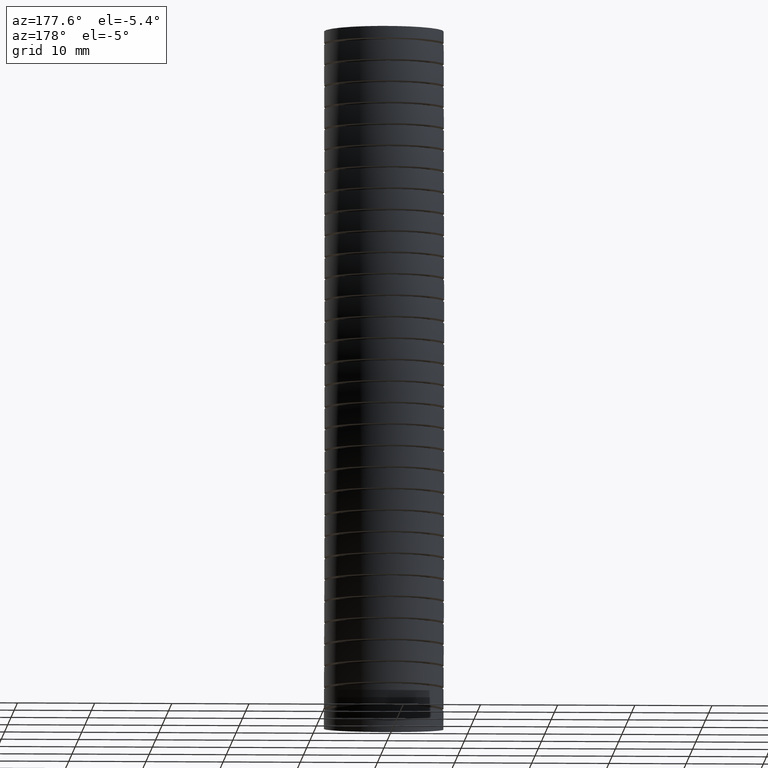
[diagram: clean part render]
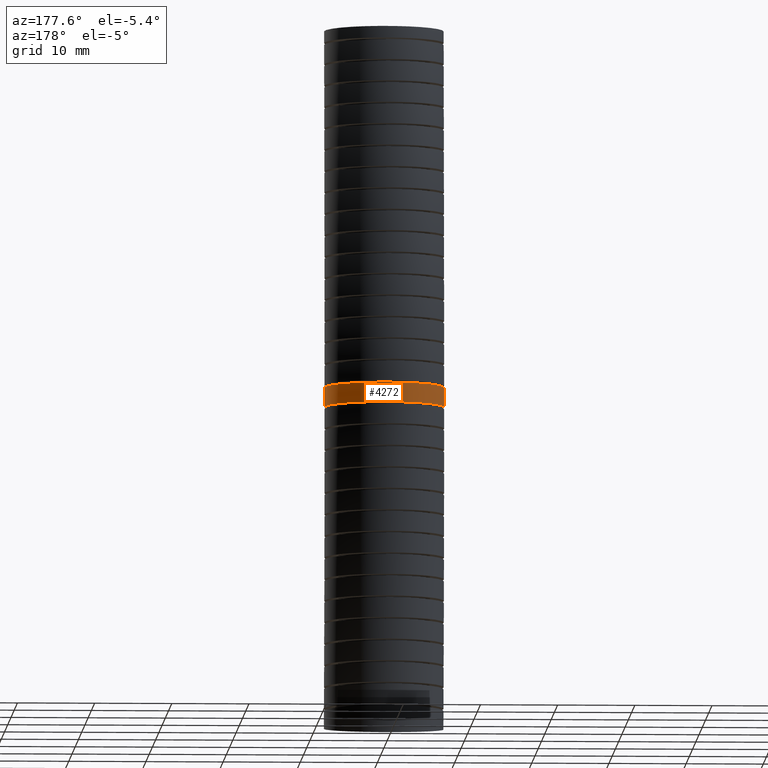
[diagram: same view with one face highlighted and labeled with its STEP entity id]
A machine part, auxiliary view. The second image highlights one B-rep face of the part: STEP entity #4272.
In plain terms, the highlighted face is a freeform B-spline surface patch.
Its self-contained STEP definition (entity closure, byte-faithful):
#700 = FACE_OUTER_BOUND ( 'NONE', #4273, .T. ) ;
#720 = CARTESIAN_POINT ( 'NONE',  ( -0.3049999999999999400, 0.6875905811525234700, -1.687708987936889400 ) ) ;
#721 = CARTESIAN_POINT ( 'NONE',  ( -0.3049999999999999400, 0.6410401296320996600, -0.6751683643642422100 ) ) ;
#722 = CARTESIAN_POINT ( 'NONE',  ( -0.3049999999999999400, 0.6100000000000001000, 0.0000000000000000000 ) ) ;
#723 = CARTESIAN_POINT ( 'NONE',  ( -0.3049999999999999900, -0.02999999999999996100, -3.569999999999999400 ) ) ;
#724 = CARTESIAN_POINT ( 'NONE',  ( -0.3049999999999999400, -0.01189670328115248300, -3.380058092153300100 ) ) ;
#725 = CARTESIAN_POINT ( 'NONE',  ( -0.3049999999999999900, 0.03783273064349428100, -2.858291051460112500 ) ) ;
#726 = CARTESIAN_POINT ( 'NONE',  ( -0.3049999999999999900, 0.07694042471324441500, -1.669468061939300500 ) ) ;
#727 = CARTESIAN_POINT ( 'NONE',  ( -0.3050000000000000500, 0.03078003440073754200, -0.6678710777714059700 ) ) ;
#728 = CARTESIAN_POINT ( 'NONE',  ( -0.3050000000000000500, 3.735172737399427600E-017, 0.0000000000000000000 ) ) ;
#729 = CARTESIAN_POINT ( 'NONE',  ( -0.3050000000000000500, -0.6339397472009050700, -3.484228316147418800 ) ) ;
#730 = CARTESIAN_POINT ( 'NONE',  ( -0.3050000000000000500, -0.6165911457587421900, -3.301565899820480900 ) ) ;
#731 = CARTESIAN_POINT ( 'NONE',  ( -0.3050000000000000500, -0.5689348463287677800, -2.799795492787948300 ) ) ;
#732 = CARTESIAN_POINT ( 'NONE',  ( -0.3050000000000001000, -0.5337097317260344200, -1.651227135941712300 ) ) ;
#733 = CARTESIAN_POINT ( 'NONE',  ( -0.3050000000000001600, -0.5794800608306244200, -0.6605737911785694000 ) ) ;
#734 = CARTESIAN_POINT ( 'NONE',  ( -0.3050000000000001000, -0.6100000000000001000, 0.0000000000000000000 ) ) ;
#735 = CARTESIAN_POINT ( 'NONE',  ( 0.3049999999999999400, -0.6339397472009050700, -3.484228316147418800 ) ) ;
#736 = CARTESIAN_POINT ( 'NONE',  ( 0.3049999999999999400, -0.6165911457587421900, -3.301565899820480900 ) ) ;
#737 = CARTESIAN_POINT ( 'NONE',  ( 0.3049999999999999400, -0.5689348463287677800, -2.799795492787948300 ) ) ;
#738 = CARTESIAN_POINT ( 'NONE',  ( 0.3050000000000000500, -0.5337097317260344200, -1.651227135941712300 ) ) ;
#739 = CARTESIAN_POINT ( 'NONE',  ( 0.3050000000000000500, -0.5794800608306244200, -0.6605737911785694000 ) ) ;
#740 = CARTESIAN_POINT ( 'NONE',  ( 0.3050000000000000500, -0.6100000000000001000, 0.0000000000000000000 ) ) ;
#741 = CARTESIAN_POINT ( 'NONE',  ( 0.3049999999999999900, -0.02999999999999999900, -3.569999999999999400 ) ) ;
#742 = CARTESIAN_POINT ( 'NONE',  ( 0.3049999999999999400, -0.01189670328115252300, -3.380058092153300100 ) ) ;
#743 = CARTESIAN_POINT ( 'NONE',  ( 0.3049999999999999900, 0.03783273064349424600, -2.858291051460112500 ) ) ;
#744 = CARTESIAN_POINT ( 'NONE',  ( 0.3049999999999999900, 0.07694042471324438700, -1.669468061939300500 ) ) ;
#745 = CARTESIAN_POINT ( 'NONE',  ( 0.3050000000000000500, 0.03078003440073750300, -0.6678710777714059700 ) ) ;
#746 = CARTESIAN_POINT ( 'NONE',  ( 0.3050000000000000500, 0.0000000000000000000, 0.0000000000000000000 ) ) ;
#755 =( BOUNDED_SURFACE ( )  B_SPLINE_SURFACE ( 3, 3, ( 
 ( #746, #745, #744, #743, #742, #741 ),
 ( #740, #739, #738, #737, #736, #735 ),
 ( #734, #733, #732, #731, #730, #729 ),
 ( #728, #727, #726, #725, #724, #723 ),
 ( #722, #721, #720, #777, #776, #775 ),
 ( #774, #773, #772, #771, #770, #769 ),
 ( #768, #767, #766, #765, #764, #763 ) ),
 .UNSPECIFIED., .F., .F., .F. ) 
 B_SPLINE_SURFACE_WITH_KNOTS ( ( 4, 3, 4 ),
 ( 4, 1, 1, 4 ),
 ( 0.0000000000000000000, 0.5000000000000000000, 1.000000000000000000 ),
 ( 0.0000000000000000000, 0.5599999999999999400, 0.8398242262648183400, 1.000000000000000000 ),
 .UNSPECIFIED. ) 
 GEOMETRIC_REPRESENTATION_ITEM ( )  RATIONAL_B_SPLINE_SURFACE ( (
 ( 1.000000000000000000, 1.000000000000000000, 1.000000000000000200, 1.000000000000000000, 1.000000000000000000, 1.000000000000000000),
 ( 0.3333333333333333100, 0.3333333333333333100, 0.3333333333333333100, 0.3333333333333333100, 0.3333333333333333100, 0.3333333333333333100),
 ( 0.3333333333333333100, 0.3333333333333333100, 0.3333333333333333100, 0.3333333333333333100, 0.3333333333333333100, 0.3333333333333333100),
 ( 1.000000000000000000, 1.000000000000000000, 1.000000000000000200, 1.000000000000000000, 1.000000000000000000, 1.000000000000000000),
 ( 0.3333333333333333100, 0.3333333333333333100, 0.3333333333333333100, 0.3333333333333333100, 0.3333333333333333100, 0.3333333333333333100),
 ( 0.3333333333333333100, 0.3333333333333333100, 0.3333333333333333100, 0.3333333333333333100, 0.3333333333333333100, 0.3333333333333333100),
 ( 1.000000000000000000, 1.000000000000000000, 1.000000000000000200, 1.000000000000000000, 1.000000000000000000, 1.000000000000000000) ) ) 
 REPRESENTATION_ITEM ( '' )  SURFACE ( )  );
#763 = CARTESIAN_POINT ( 'NONE',  ( 0.3049999999999999900, -0.02999999999999999900, -3.569999999999999400 ) ) ;
#764 = CARTESIAN_POINT ( 'NONE',  ( 0.3049999999999999400, -0.01189670328115252300, -3.380058092153300100 ) ) ;
#765 = CARTESIAN_POINT ( 'NONE',  ( 0.3049999999999999900, 0.03783273064349424600, -2.858291051460112500 ) ) ;
#766 = CARTESIAN_POINT ( 'NONE',  ( 0.3049999999999999900, 0.07694042471324438700, -1.669468061939300500 ) ) ;
#767 = CARTESIAN_POINT ( 'NONE',  ( 0.3050000000000000500, 0.03078003440073750300, -0.6678710777714059700 ) ) ;
#768 = CARTESIAN_POINT ( 'NONE',  ( 0.3050000000000000500, 0.0000000000000000000, 0.0000000000000000000 ) ) ;
#769 = CARTESIAN_POINT ( 'NONE',  ( 0.3049999999999999400, 0.5739397472009051300, -3.655771683852579600 ) ) ;
#770 = CARTESIAN_POINT ( 'NONE',  ( 0.3049999999999999400, 0.5927977391964371900, -3.458550284486119800 ) ) ;
#771 = CARTESIAN_POINT ( 'NONE',  ( 0.3049999999999999400, 0.6446003076157559300, -2.916786610132277200 ) ) ;
#772 = CARTESIAN_POINT ( 'NONE',  ( 0.3050000000000000500, 0.6875905811525232500, -1.687708987936889400 ) ) ;
#773 = CARTESIAN_POINT ( 'NONE',  ( 0.3050000000000000500, 0.6410401296320993300, -0.6751683643642422100 ) ) ;
#774 = CARTESIAN_POINT ( 'NONE',  ( 0.3050000000000000500, 0.6100000000000001000, 0.0000000000000000000 ) ) ;
#775 = CARTESIAN_POINT ( 'NONE',  ( -0.3049999999999998800, 0.5739397472009051300, -3.655771683852579600 ) ) ;
#776 = CARTESIAN_POINT ( 'NONE',  ( -0.3049999999999998800, 0.5927977391964373000, -3.458550284486119800 ) ) ;
#777 = CARTESIAN_POINT ( 'NONE',  ( -0.3049999999999999400, 0.6446003076157562600, -2.916786610132277200 ) ) ;
#868 = CARTESIAN_POINT ( 'NONE',  ( 0.3030210787423854900, 0.09764194309996519800, -1.829006689165779500 ) ) ;
#869 = CARTESIAN_POINT ( 'NONE',  ( 0.2951211052254523700, 0.1370836361751905900, -1.829006689165779700 ) ) ;
#870 = CARTESIAN_POINT ( 'NONE',  ( 0.2892683144005961400, 0.1561904237539593600, -1.829006689165780800 ) ) ;
#871 = CARTESIAN_POINT ( 'NONE',  ( 0.2778291994620708000, 0.1836869946431153000, -1.829006689165780400 ) ) ;
#872 = CARTESIAN_POINT ( 'NONE',  ( 0.2735663773831749100, 0.1926731644937737200, -1.829006689165782100 ) ) ;
#873 = CARTESIAN_POINT ( 'NONE',  ( 0.2641242958406954100, 0.2102800696893973000, -1.829006689165781700 ) ) ;
#874 = CARTESIAN_POINT ( 'NONE',  ( 0.2589136028122828700, 0.2189422409678590300, -1.829006689165779700 ) ) ;
#875 = CARTESIAN_POINT ( 'NONE',  ( 0.2421887135304763300, 0.2438667697056392500, -1.829006689165779000 ) ) ;
#876 = CARTESIAN_POINT ( 'NONE',  ( 0.2295555245778986300, 0.2591897671104898000, -1.829006689165779000 ) ) ;
#877 = CARTESIAN_POINT ( 'NONE',  ( 0.2013730925730443100, 0.2872930611300456000, -1.829006689165779500 ) ) ;
#878 = CARTESIAN_POINT ( 'NONE',  ( 0.1856586747766905700, 0.3001465312061705700, -1.829006689165780400 ) ) ;
#879 = CARTESIAN_POINT ( 'NONE',  ( 0.1525221154587592100, 0.3221996548980898800, -1.829006689165780600 ) ) ;
#880 = CARTESIAN_POINT ( 'NONE',  ( 0.1349994359866557000, 0.3315440237235637900, -1.829006689165781000 ) ) ;
#881 = CARTESIAN_POINT ( 'NONE',  ( 0.1072618138148168100, 0.3429985052530367100, -1.829006689165780600 ) ) ;
#882 = CARTESIAN_POINT ( 'NONE',  ( 0.09773891956018152000, 0.3463913856232272400, -1.829006689165780600 ) ) ;
#883 = CARTESIAN_POINT ( 'NONE',  ( 0.07860808361452638300, 0.3521633756517976700, -1.829006689165780600 ) ) ;
#884 = CARTESIAN_POINT ( 'NONE',  ( 0.06895514266880412000, 0.3545645772040374500, -1.829006689165780400 ) ) ;
#885 = CARTESIAN_POINT ( 'NONE',  ( 0.03973879276251687800, 0.3603417284934002400, -1.829006689165780600 ) ) ;
#886 = CARTESIAN_POINT ( 'NONE',  ( 0.01985264643487589700, 0.3623050163817725400, -1.829006689165781900 ) ) ;
#887 = CARTESIAN_POINT ( 'NONE',  ( -0.02035163137551255400, 0.3622721590213370800, -1.829006689165782100 ) ) ;
#888 = CARTESIAN_POINT ( 'NONE',  ( -0.04013923214573940400, 0.3602897767163270000, -1.829006689165780600 ) ) ;
#889 = CARTESIAN_POINT ( 'NONE',  ( -0.06936517418033220900, 0.3544694530246133000, -1.829006689165780600 ) ) ;
#890 = CARTESIAN_POINT ( 'NONE',  ( -0.07903068960649008200, 0.3520514153544564400, -1.829006689165780100 ) ) ;
#891 = CARTESIAN_POINT ( 'NONE',  ( -0.09820480002580900300, 0.3462345422673602800, -1.829006689165780600 ) ) ;
#892 = CARTESIAN_POINT ( 'NONE',  ( -0.1077106077162899700, 0.3428289065309596000, -1.829006689165781000 ) ) ;
#893 = CARTESIAN_POINT ( 'NONE',  ( -0.1353634456136917100, 0.3313611324674438100, -1.829006689165780800 ) ) ;
#894 = CARTESIAN_POINT ( 'NONE',  ( -0.1528713213671046600, 0.3220011948961019100, -1.829006689165779200 ) ) ;
#895 = CARTESIAN_POINT ( 'NONE',  ( -0.1777454867884881400, 0.3053953988895289900, -1.829006689165779700 ) ) ;
#896 = CARTESIAN_POINT ( 'NONE',  ( -0.1858431384248729300, 0.2993962364895630900, -1.829006689165780600 ) ) ;
#897 = CARTESIAN_POINT ( 'NONE',  ( -0.2013535231200848400, 0.2866670345353685700, -1.829006689165780600 ) ) ;
#898 = CARTESIAN_POINT ( 'NONE',  ( -0.2087394441970197000, 0.2799666244301943200, -1.829006689165781500 ) ) ;
#899 = CARTESIAN_POINT ( 'NONE',  ( -0.2298202668927727700, 0.2588860423730404700, -1.829006689165782100 ) ) ;
#900 = CARTESIAN_POINT ( 'NONE',  ( -0.2424485601805788100, 0.2435359146132727300, -1.829006689165781900 ) ) ;
#901 = CARTESIAN_POINT ( 'NONE',  ( -0.2591866426374074300, 0.2185061170906231500, -1.829006689165781900 ) ) ;
#902 = CARTESIAN_POINT ( 'NONE',  ( -0.2643619980479604600, 0.2098674739454489100, -1.829006689165780800 ) ) ;
#903 = CARTESIAN_POINT ( 'NONE',  ( -0.2737563463470617500, 0.1922868442455445700, -1.829006689165780600 ) ) ;
#904 = CARTESIAN_POINT ( 'NONE',  ( -0.2822485028551859900, 0.1743238951653098800, -1.829006689165782100 ) ) ;
#905 = CARTESIAN_POINT ( 'NONE',  ( -0.2889575095469617500, 0.1556053054999573800, -1.829006689165781000 ) ) ;
#906 = CARTESIAN_POINT ( 'NONE',  ( -0.2947597196333074400, 0.1365024450844817800, -1.829006689165780600 ) ) ;
#907 = CARTESIAN_POINT ( 'NONE',  ( -0.2972163288652339700, 0.1267032054523716300, -1.829006689165780800 ) ) ;
#908 = CARTESIAN_POINT ( 'NONE',  ( -0.3030688998954290100, 0.09723661801786878700, -1.829006689165780800 ) ) ;
#909 = CARTESIAN_POINT ( 'NONE',  ( -0.3050000000000001000, 0.07746693778235563800, -1.829006689165781900 ) ) ;
#910 = CARTESIAN_POINT ( 'NONE',  ( -0.3050000000000000500, 0.05757448116187372600, -1.829006689165781900 ) ) ;
#912 = B_SPLINE_CURVE_WITH_KNOTS ( 'NONE', 3,
 ( #910, #909, #908, #907, #906, #905, #904, #903, #902, #901, #900, #899, #898, #897, #896, #895, #894, #893, #892, #891, #890, #889, #888, #887, #886, #885, #884, #883, #882, #881, #880, #879, #878, #877, #876, #875, #874, #873, #872, #871, #870, #869, #868, #6221, #6220 ),
 .UNSPECIFIED., .F., .F.,
 ( 4, 2, 2, 1, 2, 2, 2, 2, 2, 2, 2, 2, 2, 2, 2, 2, 2, 2, 2, 2, 2, 2, 4 ),
 ( 0.02420901817277669800, 0.02572176972454263600, 0.02647814550042560500, 0.02723452127630857400, 0.02799089705219154300, 0.02874727282807451300, 0.03026002437984044700, 0.03101640015572341600, 0.03177277593160638500, 0.03328552748337232400, 0.03404190325925528900, 0.03479827903513826200, 0.03631103058690420000, 0.03782378213867013100, 0.03858015791455310400, 0.03933653369043607600, 0.04084928524220200800, 0.04236203679396795300, 0.04387478834573388400, 0.04463116412161685600, 0.04538753989749982200, 0.04690029144926576000, 0.04841304300103169100 ),
 .UNSPECIFIED. ) ;
#1661 = CARTESIAN_POINT ( 'NONE',  ( -0.1352880012625178000, 0.3313553453848153700, -1.929006546777182400 ) ) ;
#1662 = CARTESIAN_POINT ( 'NONE',  ( -0.09855265179766060900, 0.3465877504121084900, -1.929006546777182200 ) ) ;
#1663 = CARTESIAN_POINT ( 'NONE',  ( -0.07913524910376856800, 0.3524868579807075600, -1.929006546777181100 ) ) ;
#1664 = CARTESIAN_POINT ( 'NONE',  ( -0.04005825209085262000, 0.3602650535512965100, -1.929006546777181500 ) ) ;
#1665 = CARTESIAN_POINT ( 'NONE',  ( -0.02030168704544831100, 0.3622280832110002500, -1.929006546777181300 ) ) ;
#1666 = CARTESIAN_POINT ( 'NONE',  ( 0.009662922773013274100, 0.3622600095497212600, -1.929006546777180200 ) ) ;
#1668 = CARTESIAN_POINT ( 'NONE',  ( 0.1853970178580099400, 0.2997004187341288400, -1.929006546777180400 ) ) ;
#1669 = CARTESIAN_POINT ( 'NONE',  ( 0.2008862577425027100, 0.2870392842402753600, -1.929006546777180400 ) ) ;
#1670 = CARTESIAN_POINT ( 'NONE',  ( 0.2083881053181715300, 0.2802624889410070800, -1.929006546777182200 ) ) ;
#1671 = CARTESIAN_POINT ( 'NONE',  ( 0.2296146160578417300, 0.2590967515264596700, -1.929006546777183100 ) ) ;
#1674 = CARTESIAN_POINT ( 'NONE',  ( 0.01975875735165737200, 0.3617737713172318200, -1.929006546777182000 ) ) ;
#1675 = CARTESIAN_POINT ( 'NONE',  ( 0.03967717889550611400, 0.3598255982305637600, -1.929006546777182000 ) ) ;
#1676 = CARTESIAN_POINT ( 'NONE',  ( 0.04952625357303540300, 0.3583691518153419000, -1.929006546777180900 ) ) ;
#1677 = CARTESIAN_POINT ( 'NONE',  ( 0.07875055064756805700, 0.3525854986975922600, -1.929006546777180900 ) ) ;
#1679 = CARTESIAN_POINT ( 'NONE',  ( 0.2422327439495181600, 0.2437663662348576200, -1.929006546777180900 ) ) ;
#1680 = CARTESIAN_POINT ( 'NONE',  ( 0.2644316609378731800, 0.2106884252437039900, -1.929006546777180900 ) ) ;
#1681 = CARTESIAN_POINT ( 'NONE',  ( 0.2740276308628489800, 0.1928034079674827700, -1.929006546777180400 ) ) ;
#1682 = CARTESIAN_POINT ( 'NONE',  ( 0.2892992290981134000, 0.1560776499271991600, -1.929006546777180200 ) ) ;
#1683 = CARTESIAN_POINT ( 'NONE',  ( 0.2951097955904140000, 0.1370794034994986800, -1.929006546777182600 ) ) ;
#1684 = CARTESIAN_POINT ( 'NONE',  ( 0.3010231434248030700, 0.1076064769098879500, -1.929006546777183100 ) ) ;
#1685 = CARTESIAN_POINT ( 'NONE',  ( 0.3025179160686414800, 0.09762015850784842900, -1.929006546777182200 ) ) ;
#1695 = CARTESIAN_POINT ( 'NONE',  ( 0.3045015890992309700, 0.07764720206553850400, -1.929006546777182200 ) ) ;
#1696 = CARTESIAN_POINT ( 'NONE',  ( 0.3049999999999999900, 0.06761959777405507400, -1.929006546777305000 ) ) ;
#1697 = CARTESIAN_POINT ( 'NONE',  ( 0.3049999999999999400, 0.05755045189827973100, -1.929006546777304800 ) ) ;
#1708 = CARTESIAN_POINT ( 'NONE',  ( -0.2952923761194167800, 0.1363721476448581700, -1.929006546777182200 ) ) ;
#1709 = CARTESIAN_POINT ( 'NONE',  ( -0.2893981346864203900, 0.1557856839814206500, -1.929006546777181500 ) ) ;
#1710 = CARTESIAN_POINT ( 'NONE',  ( -0.2741709186534764800, 0.1925120846183887800, -1.929006546777181300 ) ) ;
#1711 = CARTESIAN_POINT ( 'NONE',  ( -0.2648152959004232400, 0.2100437820513741700, -1.929006546777182000 ) ) ;
#1712 = CARTESIAN_POINT ( 'NONE',  ( -0.2480986745057130700, 0.2350605824606224700, -1.929006546777182000 ) ) ;
#1713 = CARTESIAN_POINT ( 'NONE',  ( -0.2420876157634024000, 0.2431558805308997600, -1.929006546777181100 ) ) ;
#1730 = CARTESIAN_POINT ( 'NONE',  ( -0.3050000000000000500, 0.05755045189828045900, -1.929006546777182200 ) ) ;
#1731 = CARTESIAN_POINT ( 'NONE',  ( -0.3050000000000000500, 0.07751826796087581100, -1.929006546777181100 ) ) ;
#1732 = CARTESIAN_POINT ( 'NONE',  ( -0.3030539177235715400, 0.09727567757506769300, -1.929006546777182200 ) ) ;
#1735 = CARTESIAN_POINT ( 'NONE',  ( -0.2294282582576062700, 0.2585645735761987800, -1.929006546777182000 ) ) ;
#1736 = CARTESIAN_POINT ( 'NONE',  ( -0.2160737726676507700, 0.2732814197734888500, -1.929006546777184000 ) ) ;
#1737 = CARTESIAN_POINT ( 'NONE',  ( -0.2013482417102348300, 0.2866336923942402500, -1.929006546777182000 ) ) ;
#1738 = CARTESIAN_POINT ( 'NONE',  ( -0.1859269358169118900, 0.2992934743685908300, -1.929006546777182200 ) ) ;
#1739 = CARTESIAN_POINT ( 'NONE',  ( -0.1778207377571121600, 0.3053072134811621900, -1.929006546777182000 ) ) ;
#1740 = CARTESIAN_POINT ( 'NONE',  ( -0.1528168571491009500, 0.3220033641500172400, -1.929006546777182400 ) ) ;
#1745 = CARTESIAN_POINT ( 'NONE',  ( 0.09780601501763529200, 0.3468578569990992700, -1.929006546777181300 ) ) ;
#1746 = CARTESIAN_POINT ( 'NONE',  ( 0.1350263930424601400, 0.3315022543533767100, -1.929006546777181100 ) ) ;
#1747 = CARTESIAN_POINT ( 'NONE',  ( 0.1525918385248163400, 0.3221191014272022900, -1.929006546777181500 ) ) ;
#1748 = CARTESIAN_POINT ( 'NONE',  ( 0.1773889517875036300, 0.3056122315332087100, -1.929006546777180900 ) ) ;
#1749 = B_SPLINE_CURVE_WITH_KNOTS ( 'NONE', 3,
 ( #1697, #1696, #1695, #1685, #1684, #1683, #1682, #1681, #1680, #1679, #1671, #1670, #1669, #1668, #1748, #1747, #1746, #1745, #1677, #1676, #1675, #1674, #1666, #1665, #1664, #1663, #1662, #1661, #1740, #1739, #1738, #1737, #1736, #1735, #1713, #1712, #1711, #1710, #1709, #1708, #1732, #1731, #1730 ),
 .UNSPECIFIED., .F., .F.,
 ( 4, 2, 2, 2, 2, 2, 2, 2, 2, 2, 2, 2, 2, 2, 2, 2, 1, 2, 2, 2, 2, 4 ),
 ( 0.0000000000000000000, 0.0007646176511078713800, 0.001529235302215742800, 0.003058470604431485500, 0.004587705906647228700, 0.006116941208862971100, 0.006881558859970842200, 0.007646176511078713400, 0.009175411813294454000, 0.01070464711551019600, 0.01146926476661806700, 0.01223388241772593700, 0.01376311771994167800, 0.01529235302215741800, 0.01682158832437315900, 0.01758620597548103000, 0.01835082362658890100, 0.01911544127769677200, 0.01988005892880464300, 0.02140929423102038900, 0.02293852953323613500, 0.02446776483545187700 ),
 .UNSPECIFIED. ) ;
#3852 = VERTEX_POINT ( 'NONE', #14407 ) ;
#3853 = VERTEX_POINT ( 'NONE', #14378 ) ;
#3855 = EDGE_CURVE ( 'NONE', #3853, #3856, #14406, .T. ) ;
#3856 = VERTEX_POINT ( 'NONE', #14351 ) ;
#3859 = VERTEX_POINT ( 'NONE', #14421 ) ;
#3955 = EDGE_CURVE ( 'NONE', #3852, #3859, #15246, .T. ) ;
#4029 = ORIENTED_EDGE ( 'NONE', *, *, #3955, .T. ) ;
#4030 = ORIENTED_EDGE ( 'NONE', *, *, #4031, .T. ) ;
#4031 = EDGE_CURVE ( 'NONE', #3859, #3856, #1749, .T. ) ;
#4272 = ADVANCED_FACE ( 'NONE', ( #700 ), #755, .T. ) ;
#4273 = EDGE_LOOP ( 'NONE', ( #4282, #4284, #4029, #4030 ) ) ;
#4282 = ORIENTED_EDGE ( 'NONE', *, *, #3855, .F. ) ;
#4284 = ORIENTED_EDGE ( 'NONE', *, *, #4287, .T. ) ;
#4287 = EDGE_CURVE ( 'NONE', #3853, #3852, #912, .T. ) ;
#6220 = CARTESIAN_POINT ( 'NONE',  ( 0.3050000000000000500, 0.05757448116102496800, -1.829006688973775300 ) ) ;
#6221 = CARTESIAN_POINT ( 'NONE',  ( 0.3050000000000000500, 0.07771279890130104700, -1.829006688973775700 ) ) ;
#14348 = CARTESIAN_POINT ( 'NONE',  ( -0.3050000000000000500, 0.05764161390015094100, -1.895676623284560300 ) ) ;
#14349 = CARTESIAN_POINT ( 'NONE',  ( -0.3050000000000000500, 0.05764815970416761100, -1.862343278217170700 ) ) ;
#14350 = CARTESIAN_POINT ( 'NONE',  ( -0.3050000000000000500, 0.05757448116187372600, -1.829006689165781900 ) ) ;
#14351 = CARTESIAN_POINT ( 'NONE',  ( -0.3050000000000000500, 0.05755045189828045900, -1.929006546777182200 ) ) ;
#14378 = CARTESIAN_POINT ( 'NONE',  ( -0.3050000000000000500, 0.05757448116187372600, -1.829006689165781900 ) ) ;
#14406 = B_SPLINE_CURVE_WITH_KNOTS ( 'NONE', 3,
 ( #14350, #14349, #14348, #14422 ),
 .UNSPECIFIED., .F., .F.,
 ( 4, 4 ),
 ( 0.5115008645690374300, 0.5395027862379197000 ),
 .UNSPECIFIED. ) ;
#14407 = CARTESIAN_POINT ( 'NONE',  ( 0.3050000000000000500, 0.05757448116102496800, -1.829006688973775300 ) ) ;
#14421 = CARTESIAN_POINT ( 'NONE',  ( 0.3049999999999999400, 0.05755045189827973100, -1.929006546777304800 ) ) ;
#14422 = CARTESIAN_POINT ( 'NONE',  ( -0.3050000000000000500, 0.05755045189828045900, -1.929006546777182200 ) ) ;
#15240 = CARTESIAN_POINT ( 'NONE',  ( 0.3050000000000000500, 0.05764815970419281300, -1.862343278089219300 ) ) ;
#15241 = CARTESIAN_POINT ( 'NONE',  ( 0.3050000000000000500, 0.05757448116102496800, -1.829006688973775300 ) ) ;
#15246 = B_SPLINE_CURVE_WITH_KNOTS ( 'NONE', 3,
 ( #15241, #15240, #15406, #15405 ),
 .UNSPECIFIED., .F., .F.,
 ( 4, 4 ),
 ( 0.5115008645152768800, 0.5395027862379541100 ),
 .UNSPECIFIED. ) ;
#15405 = CARTESIAN_POINT ( 'NONE',  ( 0.3049999999999999400, 0.05755045189827973100, -1.929006546777304800 ) ) ;
#15406 = CARTESIAN_POINT ( 'NONE',  ( 0.3050000000000000500, 0.05764161390032591900, -1.895676623220652600 ) ) ;